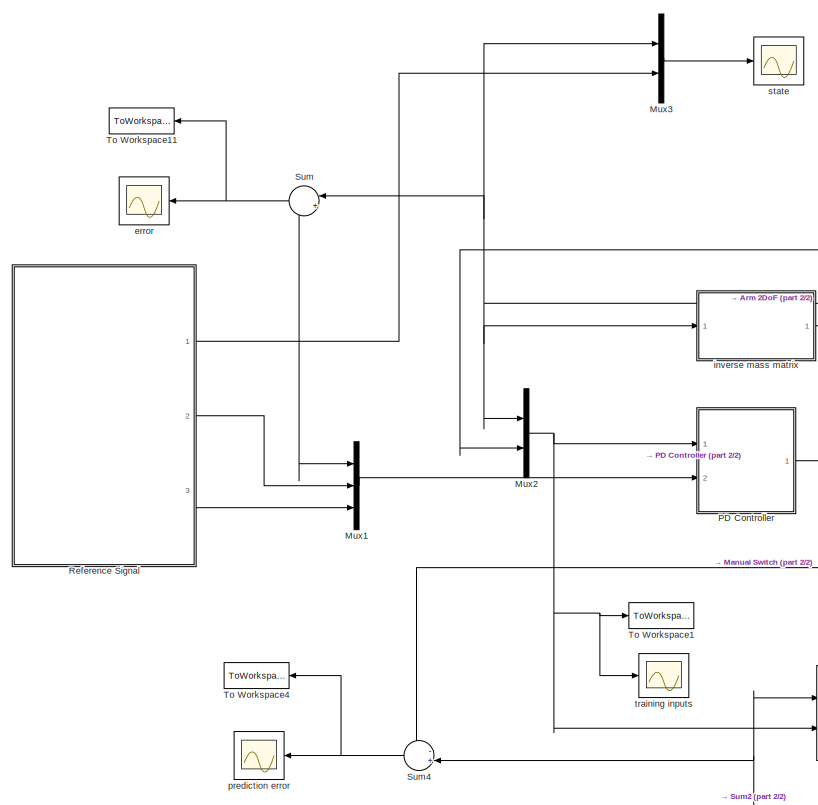
[diagram: root canvas - part 1/2, left side, full height]
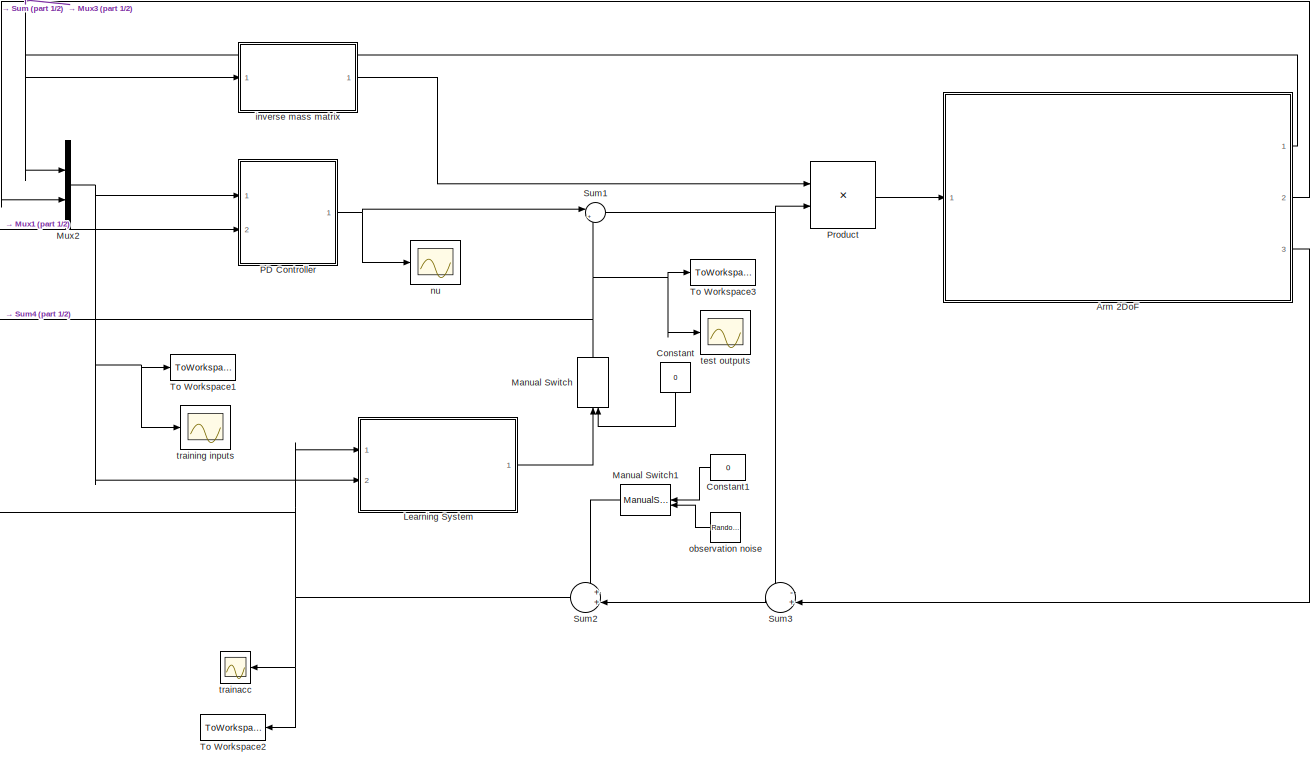
[diagram: root canvas - part 2/2, most of the canvas]
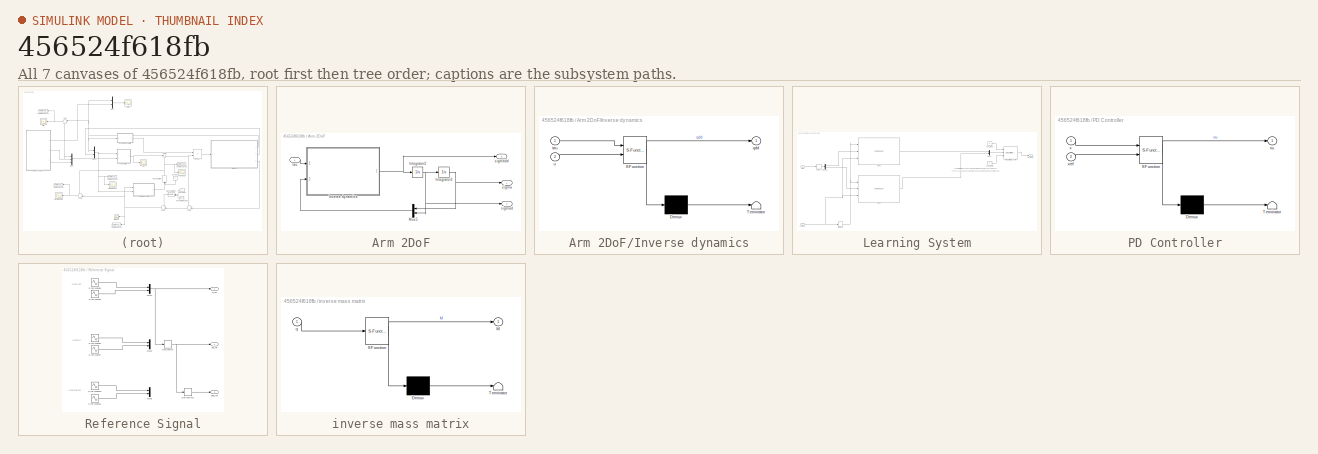
[diagram: thumbnail index - all 7 canvases of the model, root first then tree order]
MODEL slx_456524f618fb
KIND model
CONFIG AbsTol = auto
CONFIG EnableMultiTasking = off
CONFIG FixedStep = 1e-2
CONFIG MaxStep = auto
CONFIG MinStep = auto
CONFIG RelTol = 1e-3
CONFIG SampleTimeConstraint = Unconstrained
CONFIG Solver = FixedStepAuto
CONFIG SolverName = FixedStepAuto
CONFIG StartTime = 0
CONFIG StopTime = 60
WORKSPACE source: external: MAT-File  (data not in archive)
BLOCK [SubSystem] Arm 2DoF
  Ports = [1, 3]
  RequestExecContextInheritance = off
BLOCK [Integrator] Arm 2DoF/Integrator2
  InitialCondition = [0;0]
  Ports = [1, 1]
BLOCK [Integrator] Arm 2DoF/Integrator3
  InitialCondition = [0;0]
  Ports = [1, 1]
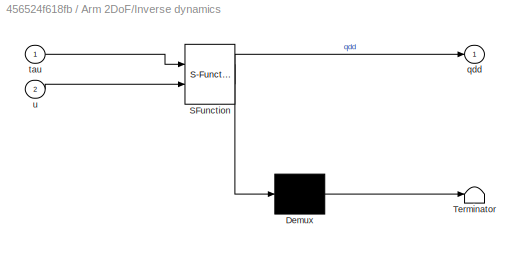
BLOCK [SubSystem] Arm 2DoF/Inverse dynamics
  ErrorFcn = Stateflow.Translate.translate
  PermitHierarchicalResolution = ExplicitOnly
  Ports = [2, 1]
  RequestExecContextInheritance = off
  SFBlockType = MATLAB Function
  TreatAsAtomicUnit = on
BLOCK [Demux] Arm 2DoF/Inverse dynamics/ Demux 
  Outputs = 1
  Ports = [1, 1]
BLOCK [S-Function] Arm 2DoF/Inverse dynamics/ SFunction 
  EnableBusSupport = on
  FunctionName = sf_sfun
  PortCounts = [2 2]
  Ports = [2, 2]
  SFcnIsStateOwnerBlock = off
  SFunctionDeploymentMode = off
  Tag = Stateflow S-Function GP_FeLi 8
BLOCK [Terminator] Arm 2DoF/Inverse dynamics/ Terminator 
BLOCK [Outport] Arm 2DoF/Inverse dynamics/qdd
  IconDisplay = Port number
BLOCK [Inport] Arm 2DoF/Inverse dynamics/tau
  IconDisplay = Port number
BLOCK [Inport] Arm 2DoF/Inverse dynamics/u
  IconDisplay = Port number
  Port = 2
BLOCK [Mux] Arm 2DoF/Mux5
  DisplayOption = bar
  Inputs = 2
  Ports = [2, 1]
BLOCK [Outport] Arm 2DoF/sigma
  IconDisplay = Port number
BLOCK [Outport] Arm 2DoF/sigmad
  IconDisplay = Port number
  Port = 2
BLOCK [Outport] Arm 2DoF/sigmadd
  IconDisplay = Port number
  Port = 3
BLOCK [Inport] Arm 2DoF/tau
  IconDisplay = Port number
BLOCK [Constant] Constant
  Value = 0
BLOCK [Constant] Constant1
  Value = 0
BLOCK [SubSystem] Learning System
  Ports = [2, 1]
  RequestExecContextInheritance = off
BLOCK [Constant] Learning System/Constant
  Value = 5
BLOCK [Constant] Learning System/Constant1
  Value = -5
BLOCK [Delay] Learning System/Delay1
  DelayLength = 1
  InputPortMap = u0
  Ports = [1, 1]
BLOCK [Delay] Learning System/Delay3
  DelayLength = 1
  InputPortMap = u0
  Ports = [1, 1]
BLOCK [Demux] Learning System/Demux
  DisplayOption = bar
  Outputs = 2
  Ports = [1, 2]
BLOCK [Reference] Learning System/Link1  REF=RealTimeLearning/RPROP-DLGP
  Ports = [3, 1]
  SourceBlock = RealTimeLearning/RPROP-DLGP
  SourceProductName = Real Time Learning
  SourceType = LoGGP_IE_RPROP
BLOCK [Reference] Learning System/Link2  REF=RealTimeLearning/RPROP-DLGP
  Ports = [3, 1]
  SourceBlock = RealTimeLearning/RPROP-DLGP
  SourceProductName = Real Time Learning
  SourceType = LoGGP_IE_RPROP
BLOCK [Mux] Learning System/Mux6
  DisplayOption = bar
  Inputs = 2
  Ports = [2, 1]
BLOCK [Reference] Learning System/Rate Limiter Dynamic  REF=simulink/Discontinuities/Rate Limiter
Dynamic
  Ports = [3, 1]
  SourceBlock = simulink/Discontinuities/Rate Limiter\nDynamic
  SourceProductBaseCode = SL
  SourceProductName = Simulink
  SourceType = Rate Limiter Dynamic
BLOCK [Inport] Learning System/ddq
  IconDisplay = Port number
BLOCK [Inport] Learning System/p=[q,dq]
  IconDisplay = Port number
  Port = 2
BLOCK [Outport] Learning System/prediction
  IconDisplay = Port number
BLOCK [ManualSwitch] Manual Switch
BLOCK [ManualSwitch] Manual Switch1
  CurrentSetting = 0
BLOCK [Mux] Mux1
  DisplayOption = bar
  Inputs = 3
  Ports = [3, 1]
BLOCK [Mux] Mux2
  DisplayOption = bar
  Inputs = 2
  Ports = [2, 1]
BLOCK [Mux] Mux3
  DisplayOption = bar
  Inputs = 2
  Ports = [2, 1]
BLOCK [SubSystem] PD Controller
  ErrorFcn = Stateflow.Translate.translate
  PermitHierarchicalResolution = ExplicitOnly
  Ports = [2, 1]
  RequestExecContextInheritance = off
  SFBlockType = MATLAB Function
  TreatAsAtomicUnit = on
BLOCK [Demux] PD Controller/ Demux 
  Outputs = 1
  Ports = [1, 1]
BLOCK [S-Function] PD Controller/ SFunction 
  EnableBusSupport = on
  FunctionName = sf_sfun
  PortCounts = [2 2]
  Ports = [2, 2]
  SFcnIsStateOwnerBlock = off
  SFunctionDeploymentMode = off
  Tag = Stateflow S-Function GP_FeLi 2
BLOCK [Terminator] PD Controller/ Terminator 
BLOCK [Outport] PD Controller/nu
  IconDisplay = Port number
BLOCK [Inport] PD Controller/x
  IconDisplay = Port number
BLOCK [Inport] PD Controller/xref
  IconDisplay = Port number
  Port = 2
BLOCK [Product] Product
  InputSameDT = off
  Multiplication = Matrix(*)
  OutDataTypeStr = Inherit: Inherit via internal rule
  Ports = [2, 1]
  RndMeth = Floor
  SaturateOnIntegerOverflow = off
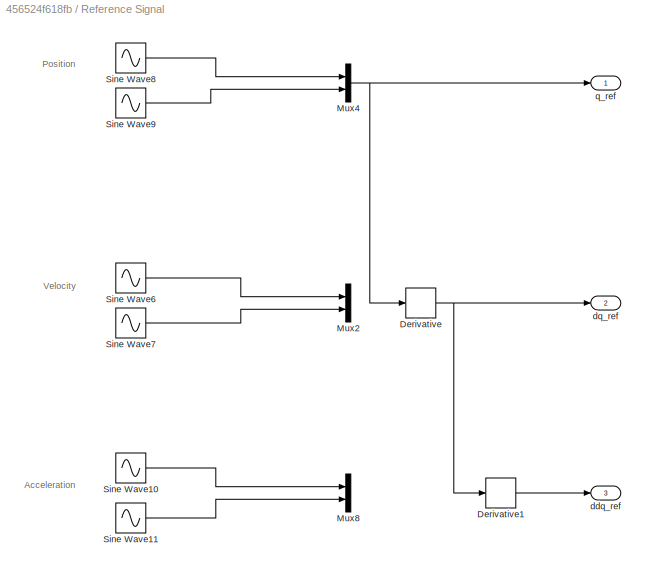
BLOCK [SubSystem] Reference Signal
  Ports = [0, 3]
  RequestExecContextInheritance = off
BLOCK [Derivative] Reference Signal/Derivative
BLOCK [Derivative] Reference Signal/Derivative1
BLOCK [Mux] Reference Signal/Mux2
  DisplayOption = bar
  Inputs = 2
  Ports = [2, 1]
BLOCK [Mux] Reference Signal/Mux4
  DisplayOption = bar
  Inputs = 2
  Ports = [2, 1]
BLOCK [Mux] Reference Signal/Mux8
  DisplayOption = bar
  Inputs = 2
  Ports = [2, 1]
BLOCK [Sin] Reference Signal/Sine Wave10
  Amplitude = -pi/6
  Phase = pi/2
  Ports = [0, 1]
  SampleTime = 0
BLOCK [Sin] Reference Signal/Sine Wave11
  Amplitude = -pi/24
  Frequency = 0.5
  Phase = pi/2
  Ports = [0, 1]
  SampleTime = 0
BLOCK [Sin] Reference Signal/Sine Wave6
  Amplitude = -pi/6
  Ports = [0, 1]
  SampleTime = 0
BLOCK [Sin] Reference Signal/Sine Wave7
  Amplitude = -pi/12
  Frequency = 0.5
  Ports = [0, 1]
  SampleTime = 0
BLOCK [Sin] Reference Signal/Sine Wave8
  Amplitude = pi/6
  Phase = pi/2
  Ports = [0, 1]
  SampleTime = 0
BLOCK [Sin] Reference Signal/Sine Wave9
  Amplitude = pi/6
  Frequency = 0.5
  Phase = pi/2
  Ports = [0, 1]
  SampleTime = 0
BLOCK [Outport] Reference Signal/ddq_ref
  IconDisplay = Port number
  Port = 3
BLOCK [Outport] Reference Signal/dq_ref
  IconDisplay = Port number
  Port = 2
BLOCK [Outport] Reference Signal/q_ref
  IconDisplay = Port number
BLOCK [Sum] Sum
  IconShape = round
  InputSameDT = off
  Inputs = |+-
  OutDataTypeStr = Inherit: Inherit via internal rule
  Ports = [2, 1]
  SaturateOnIntegerOverflow = off
BLOCK [Sum] Sum1
  IconShape = round
  InputSameDT = off
  Inputs = |+-
  OutDataTypeStr = Inherit: Inherit via internal rule
  Ports = [2, 1]
  SaturateOnIntegerOverflow = off
BLOCK [Sum] Sum2
  IconShape = round
  InputSameDT = off
  Inputs = ++|
  OutDataTypeStr = Inherit: Inherit via internal rule
  Ports = [2, 1]
  SaturateOnIntegerOverflow = off
BLOCK [Sum] Sum3
  IconShape = round
  InputSameDT = off
  Inputs = -+|
  OutDataTypeStr = Inherit: Inherit via internal rule
  Ports = [2, 1]
  SaturateOnIntegerOverflow = off
BLOCK [Sum] Sum4
  IconShape = round
  InputSameDT = off
  Inputs = -+|
  OutDataTypeStr = Inherit: Inherit via internal rule
  Ports = [2, 1]
  SaturateOnIntegerOverflow = off
BLOCK [ToWorkspace] To Workspace1
  FixptAsFi = on
  MaxDataPoints = inf
  Ports = [1]
  SampleTime = -1
  Save2DSignal = 2-D array (concatenate along first dimension)
  VariableName = xTrain
BLOCK [ToWorkspace] To Workspace11
  FixptAsFi = on
  MaxDataPoints = inf
  Ports = [1]
  SampleTime = -1
  Save2DSignal = 2-D array (concatenate along first dimension)
  VariableName = absoluteError
BLOCK [ToWorkspace] To Workspace2
  FixptAsFi = on
  MaxDataPoints = inf
  Ports = [1]
  SampleTime = -1
  Save2DSignal = 2-D array (concatenate along first dimension)
  VariableName = yTrain
BLOCK [ToWorkspace] To Workspace3
  FixptAsFi = on
  MaxDataPoints = inf
  Ports = [1]
  SampleTime = -1
  Save2DSignal = 2-D array (concatenate along first dimension)
  VariableName = yTest
BLOCK [ToWorkspace] To Workspace4
  FixptAsFi = on
  MaxDataPoints = inf
  Ports = [1]
  SampleTime = -1
  Save2DSignal = 2-D array (concatenate along first dimension)
  VariableName = predictionerror
BLOCK [Scope] error
  Floating = off
  NumInputPorts = 1
  Ports = [1]
  ScopeSpecificationString = Simulink.scopes.TimeScopeBlockCfg('CurrentConfiguration', extmgr.ConfigurationSet(extmgr.Configuration('Core','General UI',true),extmgr.Configuration('Core','Source UI',true),extmgr.Configuration('Sources','WiredSimulink',true,'DataLoggingVariableName','ScopeData1'),extmgr.Configuration('Visuals','Time Domain',true,'SerializedDisplays',{struct('MinYLimReal','-1.56345','MaxYLimReal','1.00889','YLab...<+1515ch>
BLOCK [SubSystem] inverse mass matrix
  ErrorFcn = Stateflow.Translate.translate
  PermitHierarchicalResolution = ExplicitOnly
  Ports = [1, 1]
  RequestExecContextInheritance = off
  SFBlockType = MATLAB Function
  TreatAsAtomicUnit = on
BLOCK [Demux] inverse mass matrix/ Demux 
  Outputs = 1
  Ports = [1, 1]
BLOCK [S-Function] inverse mass matrix/ SFunction 
  EnableBusSupport = on
  FunctionName = sf_sfun
  PortCounts = [1 2]
  Ports = [1, 2]
  SFcnIsStateOwnerBlock = off
  SFunctionDeploymentMode = off
  Tag = Stateflow S-Function GP_FeLi 1
BLOCK [Terminator] inverse mass matrix/ Terminator 
BLOCK [Outport] inverse mass matrix/M
  IconDisplay = Port number
BLOCK [Inport] inverse mass matrix/q
  IconDisplay = Port number
BLOCK [Scope] nu
  Floating = off
  NumInputPorts = 1
  Ports = [1]
  ScopeSpecificationString = Simulink.scopes.TimeScopeBlockCfg('CurrentConfiguration', extmgr.ConfigurationSet(extmgr.Configuration('Core','General UI',true),extmgr.Configuration('Core','Source UI',true),extmgr.Configuration('Sources','WiredSimulink',true,'DataLoggingVariableName','ScopeData3'),extmgr.Configuration('Visuals','Time Domain',true,'SerializedDisplays',{struct('MinYLimReal','-14.63306','MaxYLimReal','15.62903','YL...<+1472ch>
BLOCK [RandomNumber] observation noise
  SampleTime = 0.005
BLOCK [Scope] prediction error
  Floating = off
  NumInputPorts = 1
  Ports = [1]
  ScopeSpecificationString = Simulink.scopes.TimeScopeBlockCfg('CurrentConfiguration', extmgr.ConfigurationSet(extmgr.Configuration('Core','General UI',true),extmgr.Configuration('Core','Source UI',true),extmgr.Configuration('Sources','WiredSimulink',true,'DataLoggingVariableName','ScopeData5'),extmgr.Configuration('Visuals','Time Domain',true,'SerializedDisplays',{struct('MinYLimReal','-6.9253','MaxYLimReal','6.33028','YLabe...<+1514ch>
BLOCK [Scope] state
  Floating = off
  NumInputPorts = 1
  Ports = [1]
  ScopeSpecificationString = Simulink.scopes.TimeScopeBlockCfg('CurrentConfiguration', extmgr.ConfigurationSet(extmgr.Configuration('Core','General UI',true),extmgr.Configuration('Core','Source UI',true),extmgr.Configuration('Sources','WiredSimulink',true,'DataLoggingVariableName','ScopeData2'),extmgr.Configuration('Visuals','Time Domain',true,'SerializedDisplays',{struct('MinYLimReal','-2.08588','MaxYLimReal','3.72951','YLab...<+1576ch>
BLOCK [Scope] test outputs
  Floating = off
  NumInputPorts = 1
  Ports = [1]
  ScopeSpecificationString = Simulink.scopes.TimeScopeBlockCfg('CurrentConfiguration', extmgr.ConfigurationSet(extmgr.Configuration('Core','General UI',true),extmgr.Configuration('Core','Source UI',true),extmgr.Configuration('Sources','WiredSimulink',true,'DataLoggingVariableName','ScopeData1'),extmgr.Configuration('Visuals','Time Domain',true,'SerializedDisplays',{struct('MinYLimReal','-6.67806','MaxYLimReal','7.47141','YLab...<+1467ch>
BLOCK [Scope] trainacc
  Floating = off
  NumInputPorts = 1
  Ports = [1]
  ScopeSpecificationString = Simulink.scopes.TimeScopeBlockCfg('CurrentConfiguration', extmgr.ConfigurationSet(extmgr.Configuration('Core','General UI',true),extmgr.Configuration('Core','Source UI',true),extmgr.Configuration('Sources','WiredSimulink',true,'DataLoggingVariableName','trainTorque','DataLoggingSaveFormat','Array'),extmgr.Configuration('Visuals','Time Domain',true,'SerializedDisplays',{struct('MinYLimReal','-97.49...<+1558ch>
BLOCK [Scope] training inputs
  Floating = off
  NumInputPorts = 1
  Ports = [1]
  ScopeSpecificationString = Simulink.scopes.TimeScopeBlockCfg('CurrentConfiguration', extmgr.ConfigurationSet(extmgr.Configuration('Core','General UI',true),extmgr.Configuration('Core','Source UI',true),extmgr.Configuration('Sources','WiredSimulink',true,'DataLoggingVariableName','ScopeData1'),extmgr.Configuration('Visuals','Time Domain',true,'SerializedDisplays',{struct('MinYLimReal','-14.63306','MaxYLimReal','15.62903','YL...<+1529ch>
ANNOTATION Learning System: The rate limiter improves the safety in real-world applications since in prevents large changes in the predictions.
ANNOTATION Learning System: These can appear especially at the beginning of the learning, since training data have a strong impact in this phase.
ANNOTATION Reference Signal: Acceleration
ANNOTATION Reference Signal: Position
ANNOTATION Reference Signal: Velocity
NET Arm 2DoF/Integrator2:1 -> Arm 2DoF/Integrator3:1, Arm 2DoF/Mux5:2, Arm 2DoF/sigmad:1
NET Arm 2DoF/Integrator3:1 -> Arm 2DoF/Mux5:1, Arm 2DoF/sigma:1
NET Arm 2DoF/Inverse dynamics:1 -> Arm 2DoF/Integrator2:1, Arm 2DoF/sigmadd:1
LINE Arm 2DoF/Mux5:1 -> Arm 2DoF/Inverse dynamics:2
LINE Arm 2DoF/tau:1 -> Arm 2DoF/Inverse dynamics:1
NET Arm 2DoF:1 -> Mux2:1, Mux3:1, Sum:1, inverse mass matrix:1
LINE Arm 2DoF:2 -> Mux2:2
LINE Arm 2DoF:3 -> Sum3:2
LINE Constant1:1 -> Manual Switch1:1
LINE Constant:1 -> Manual Switch:2
LINE Learning System/Constant1:1 -> Learning System/Rate Limiter Dynamic:3
LINE Learning System/Constant:1 -> Learning System/Rate Limiter Dynamic:1
NET Learning System/Delay1:1 -> Learning System/Link1:1, Learning System/Link2:1
LINE Learning System/Delay3:1 -> Learning System/Demux:1
LINE Learning System/Demux:1 -> Learning System/Link1:2
LINE Learning System/Demux:2 -> Learning System/Link2:2
LINE Learning System/Link1:1 -> Learning System/Mux6:1
LINE Learning System/Link2:1 -> Learning System/Mux6:2
LINE Learning System/Mux6:1 -> Learning System/Rate Limiter Dynamic:2
LINE Learning System/Rate Limiter Dynamic:1 -> Learning System/prediction:1
LINE Learning System/ddq:1 -> Learning System/Delay3:1
NET Learning System/p=[q,dq]:1 -> Learning System/Delay1:1, Learning System/Link1:3, Learning System/Link2:3
LINE Learning System:1 -> Manual Switch:1
LINE Manual Switch1:1 -> Sum2:1
NET Manual Switch:1 -> Sum1:2, Sum4:1, To Workspace3:1, test outputs:1
LINE Mux1:1 -> PD Controller:2
NET Mux2:1 -> Learning System:2, PD Controller:1, To Workspace1:1, training inputs:1
LINE Mux3:1 -> state:1
NET PD Controller:1 -> Sum1:1, nu:1
LINE Product:1 -> Arm 2DoF:1
LINE Reference Signal/Derivative1:1 -> Reference Signal/ddq_ref:1
NET Reference Signal/Derivative:1 -> Reference Signal/Derivative1:1, Reference Signal/dq_ref:1
NET Reference Signal/Mux4:1 -> Reference Signal/Derivative:1, Reference Signal/q_ref:1
LINE Reference Signal/Sine Wave10:1 -> Reference Signal/Mux8:1
LINE Reference Signal/Sine Wave11:1 -> Reference Signal/Mux8:2
LINE Reference Signal/Sine Wave6:1 -> Reference Signal/Mux2:1
LINE Reference Signal/Sine Wave7:1 -> Reference Signal/Mux2:2
LINE Reference Signal/Sine Wave8:1 -> Reference Signal/Mux4:1
LINE Reference Signal/Sine Wave9:1 -> Reference Signal/Mux4:2
NET Reference Signal:1 -> Mux1:1, Mux3:2, Sum:2
LINE Reference Signal:2 -> Mux1:2
LINE Reference Signal:3 -> Mux1:3
NET Sum1:1 -> Product:2, Sum3:1
NET Sum2:1 -> Learning System:1, Sum4:2, To Workspace2:1, trainacc:1
LINE Sum3:1 -> Sum2:2
NET Sum4:1 -> To Workspace4:1, prediction error:1
NET Sum:1 -> To Workspace11:1, error:1
LINE inverse mass matrix:1 -> Product:1
LINE observation noise:1 -> Manual Switch1:2
note: NET lines group one-source signal fan-out (src -> all destinations, sorted); 1:1 wires keep LINE
CHART inverse mass matrix states=1 transitions=1
  STATE_LABEL 'eML_blk_kernel()'
  STATE_LABEL 'SCRIPT:\nfunction M = fcn(q)\n\nIz1 = 2;   %moment of inertia\nIz2 =2;    \nm1 = 2;    %mass\nm2 = 2;\nl1 = 2;    %length\nl2 = 2;\nr1 = 2;   %length to the center of mass\nr2 = 2;\ng = 9.81;  %gravity\n\na = Iz1 + Iz2 + m1*r1^2 + m2*( l1^2 + r2^2 );\nb = m2*l1*r2;\nd = Iz2 + m2*r2^2;\n\nM = [ a + 2*b*cos( q(2) ),   d + b*cos( q(2) );\n          d + b*cos( q(2) ),              d        ];\n'
CHART PD Controller states=1 transitions=1
  STATE_LABEL 'eML_blk_kernel()'
  STATE_LABEL 'SCRIPT:\nfunction nu = fcn(x,xref)\n\nnDof = size(x,1)/2;\nnu = zeros(2,1);\n\nlam=1*ones(nDof,1);\nkc=2*ones(nDof,1);\n\ne=x-xref(1:end-nDof);\nnu=zeros(nDof,1);\n\nfor i=1:nDof\n    mask=linspace(i,size(x,1)-2+i,nDof);\n    r=[lam(i),1]*e(mask);\n    nu(i)=-kc(i)*r-lam(i)*e(mask(2))+xref(end-nDof+i);\nend\n\n'
CHART Arm 2DoF/Inverse dynamics states=1 transitions=1
  STATE_LABEL 'eML_blk_kernel()'
  STATE_LABEL "SCRIPT:\nfunction qdd = fcn(tau,u)\n%{\ninverse dynamics of a 2 DoF robotic arm\nInputs tau: 2x1 vector. Torques\n       u: 4x1 vector [sigma1, sigma2, sigma1d, sigma2d]' position and speed\nOutput qdd: 2x1 vector with accelerations \n%}\n\nIz1 = 2;   %moment of inertia\nIz2 =2;    \nm1 = 2;    %mass\nm2 = 2;\nl1 = 2;    %length\nl2 = 2;\nr1 = 2;   %length to the center of mass\nr2 = 2;\ng = 9.81;  %gravity\n\na = I...<+470ch>"
